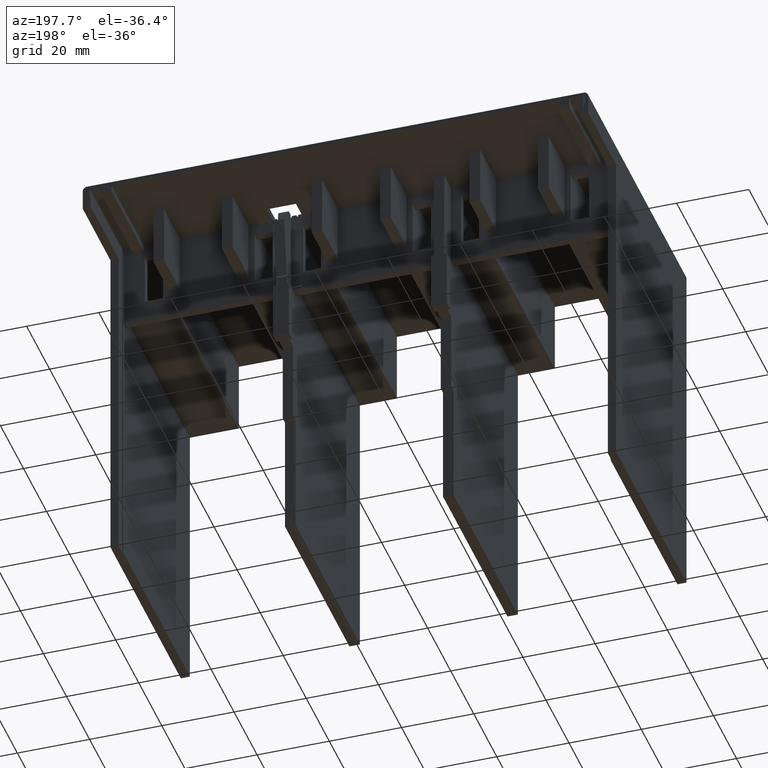
[diagram: clean part render]
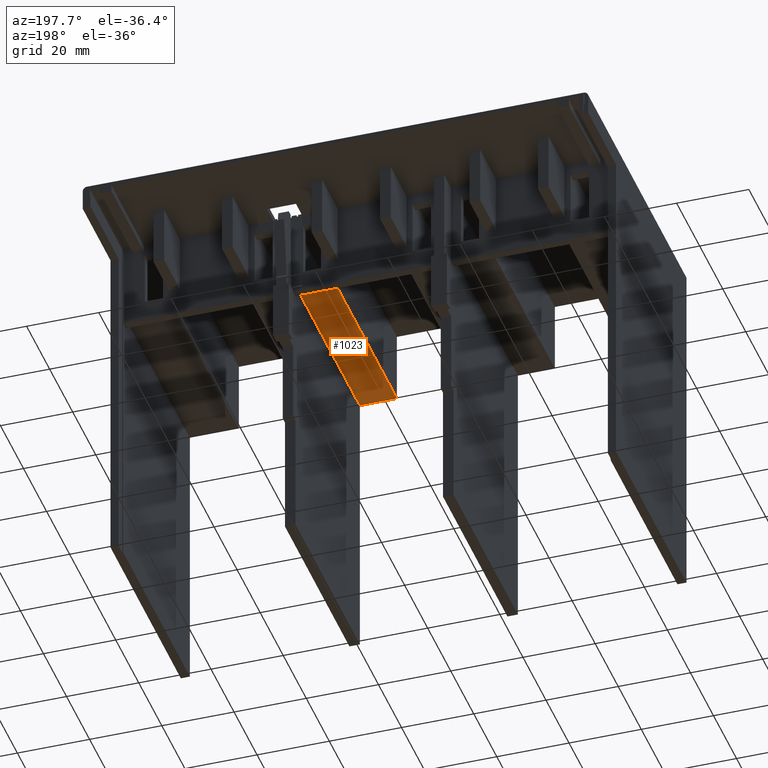
[diagram: same view with one face highlighted and labeled with its STEP entity id]
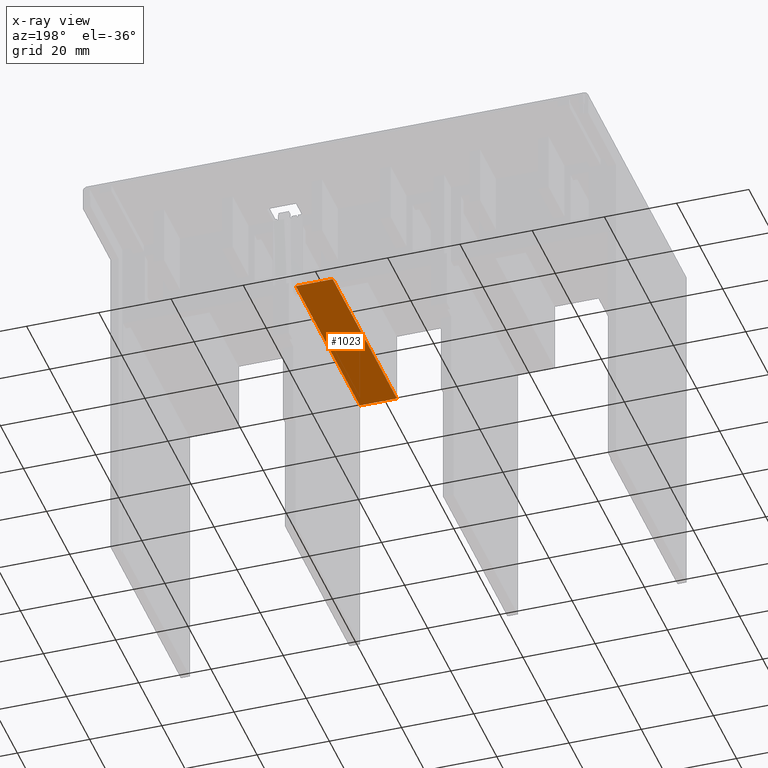
[diagram: x-ray of the same camera — body ghosted, the highlighted face saturated]
A machine part, auxiliary view. The second image highlights one B-rep face of the part: STEP entity #1023.
The next image is the same camera in x-ray: the body ghosted, the highlighted face saturated — about 0% of this face is hidden behind the body in this view.
In plain terms, the highlighted planar face has unit normal (0, 0, 1).
Its self-contained STEP definition (entity closure, byte-faithful):
#1023 = ADVANCED_FACE( '', ( #2293 ), #2294, .F. );
#2293 = FACE_OUTER_BOUND( '', #3803, .T. );
#2294 = PLANE( '', #3804 );
#3803 = EDGE_LOOP( '', ( #7043, #7044, #7045, #7046 ) );
#3804 = AXIS2_PLACEMENT_3D( '', #7047, #7048, #7049 );
#7043 = ORIENTED_EDGE( '', *, *, #10813, .T. );
#7044 = ORIENTED_EDGE( '', *, *, #9700, .F. );
#7045 = ORIENTED_EDGE( '', *, *, #9859, .F. );
#7046 = ORIENTED_EDGE( '', *, *, #10860, .T. );
#7047 = CARTESIAN_POINT( '', ( 10.1750000000000, -85.2000000000000, -22.7100000000000 ) );
#7048 = DIRECTION( '', ( 0.000000000000000, 0.000000000000000, 1.00000000000000 ) );
#7049 = DIRECTION( '', ( 1.00000000000000, 0.000000000000000, -0.000000000000000 ) );
#9700 = EDGE_CURVE( '', #11835, #11837, #11838, .T. );
#9859 = EDGE_CURVE( '', #12121, #11835, #12123, .T. );
#10813 = EDGE_CURVE( '', #13648, #11837, #13649, .T. );
#10860 = EDGE_CURVE( '', #12121, #13648, #13712, .T. );
#11835 = VERTEX_POINT( '', #14964 );
#11837 = VERTEX_POINT( '', #14967 );
#11838 = LINE( '', #14968, #14969 );
#12121 = VERTEX_POINT( '', #15381 );
#12123 = LINE( '', #15384, #15385 );
#13648 = VERTEX_POINT( '', #17692 );
#13649 = LINE( '', #17693, #17694 );
#13712 = LINE( '', #17787, #17788 );
#14964 = CARTESIAN_POINT( '', ( 20.4250000000000, -85.2000000000000, -22.7100000000000 ) );
#14967 = CARTESIAN_POINT( '', ( 20.4250000000000, -29.5000000000000, -22.7100000000000 ) );
#14968 = CARTESIAN_POINT( '', ( 20.4250000000000, -85.2000000000000, -22.7100000000000 ) );
#14969 = VECTOR( '', #19101, 1000.00000000000 );
#15381 = CARTESIAN_POINT( '', ( 10.1750000000000, -85.2000000000000, -22.7100000000000 ) );
#15384 = CARTESIAN_POINT( '', ( 10.1750000000000, -85.2000000000000, -22.7100000000000 ) );
#15385 = VECTOR( '', #19244, 1000.00000000000 );
#17692 = CARTESIAN_POINT( '', ( 10.1750000000000, -29.5000000000000, -22.7100000000000 ) );
#17693 = CARTESIAN_POINT( '', ( 10.1750000000000, -29.5000000000000, -22.7100000000000 ) );
#17694 = VECTOR( '', #20033, 1000.00000000000 );
#17787 = CARTESIAN_POINT( '', ( 10.1750000000000, -85.2000000000000, -22.7100000000000 ) );
#17788 = VECTOR( '', #20067, 1000.00000000000 );
#19101 = DIRECTION( '', ( 0.000000000000000, 1.00000000000000, 0.000000000000000 ) );
#19244 = DIRECTION( '', ( 1.00000000000000, 0.000000000000000, 0.000000000000000 ) );
#20033 = DIRECTION( '', ( 1.00000000000000, 0.000000000000000, 0.000000000000000 ) );
#20067 = DIRECTION( '', ( 0.000000000000000, 1.00000000000000, 0.000000000000000 ) );